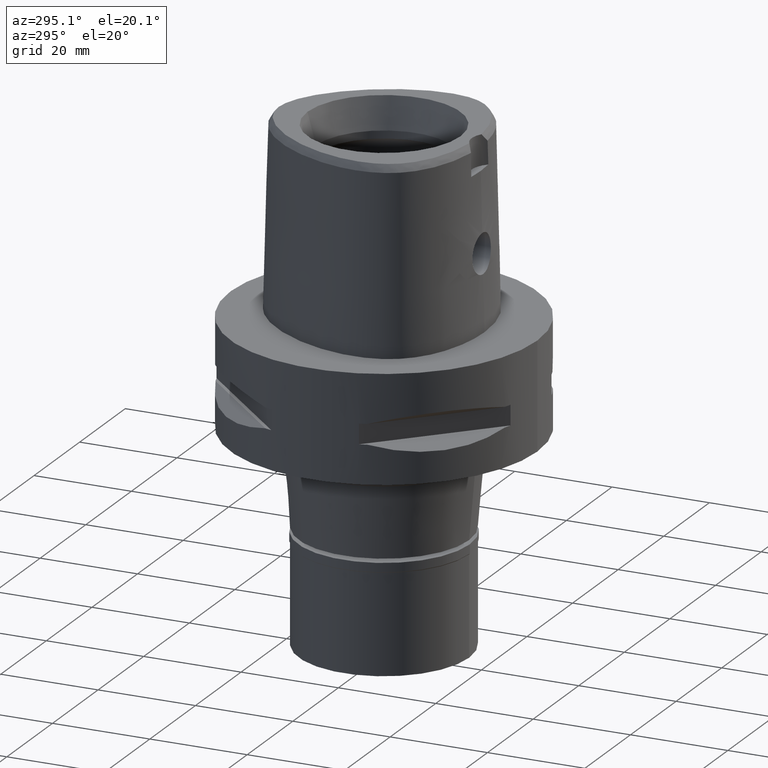
[diagram: clean part render]
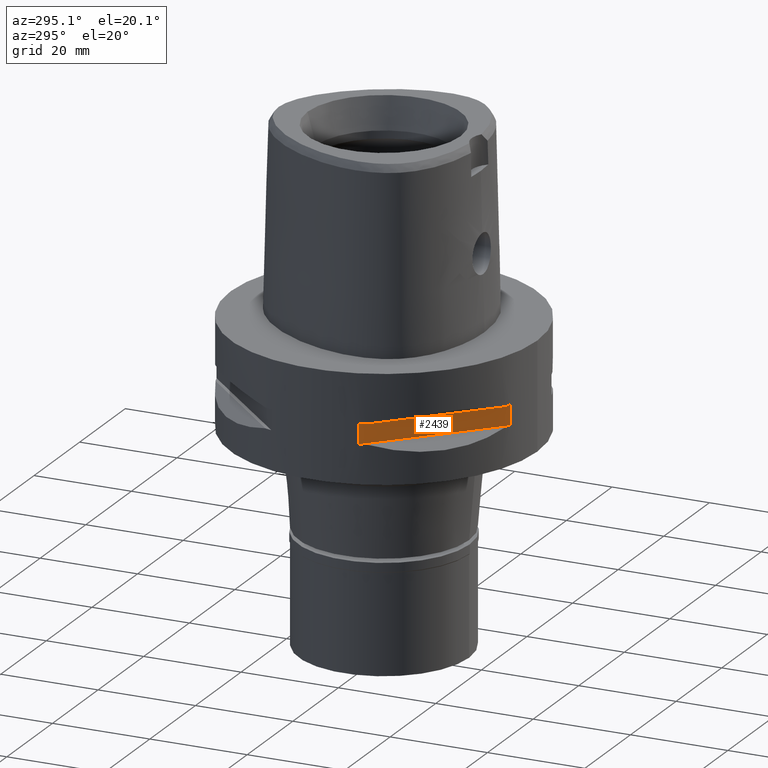
[diagram: same view with one face highlighted and labeled with its STEP entity id]
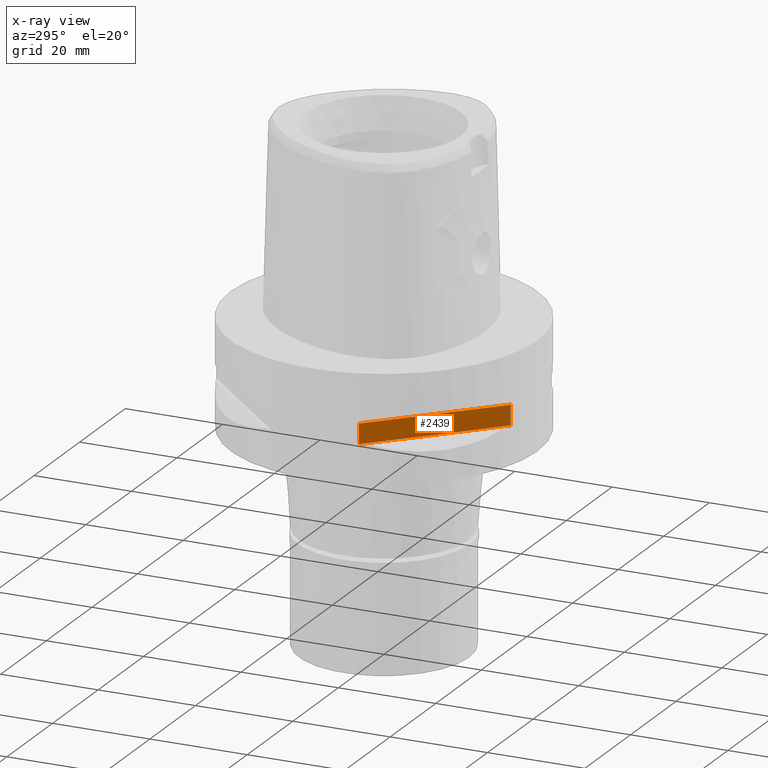
[diagram: x-ray of the same camera — body ghosted, the highlighted face saturated]
A machine part, auxiliary view. The second image highlights one B-rep face of the part: STEP entity #2439.
The next image is the same camera in x-ray: the body ghosted, the highlighted face saturated — about 0% of this face is hidden behind the body in this view.
In plain terms, the highlighted planar face has unit normal (0.7071, 0.7071, 0).
Its self-contained STEP definition (entity closure, byte-faithful):
#162 = AXIS2_PLACEMENT_3D ( 'NONE', #654, #4727, #2483 ) ;
#181 = CARTESIAN_POINT ( 'NONE',  ( -30.19251670572000279, -8.981198972019999616, -9.950000000000001066 ) ) ;
#193 = CARTESIAN_POINT ( 'NONE',  ( -8.981198972019999616, -30.19251670572000279, -14.05000000000000071 ) ) ;
#267 = PLANE ( 'NONE',  #162 ) ;
#404 = VECTOR ( 'NONE', #968, 1000.000000000000000 ) ;
#517 = ORIENTED_EDGE ( 'NONE', *, *, #4060, .F. ) ;
#654 = CARTESIAN_POINT ( 'NONE',  ( -5.444722215136000187, -33.72899346260000186, -9.950000000000001066 ) ) ;
#804 = DIRECTION ( 'NONE',  ( 0.7071067811865474617, -0.7071067811865474617, 0.0000000000000000000 ) ) ;
#968 = DIRECTION ( 'NONE',  ( 0.0000000000000000000, 0.0000000000000000000, 1.000000000000000000 ) ) ;
#1026 = FACE_OUTER_BOUND ( 'NONE', #2423, .T. ) ;
#1492 = CARTESIAN_POINT ( 'NONE',  ( -8.981198972017999438, -30.19251670572000279, -9.950000000000001066 ) ) ;
#1689 = VERTEX_POINT ( 'NONE', #193 ) ;
#1735 = VECTOR ( 'NONE', #804, 1000.000000000000114 ) ;
#1829 = CARTESIAN_POINT ( 'NONE',  ( -30.19251670572000279, -8.981198972017999438, -14.05000000000000071 ) ) ;
#2347 = ORIENTED_EDGE ( 'NONE', *, *, #4514, .T. ) ;
#2399 = DIRECTION ( 'NONE',  ( 0.7071067811865474617, -0.7071067811865474617, 0.0000000000000000000 ) ) ;
#2423 = EDGE_LOOP ( 'NONE', ( #517, #3862, #2347, #3893 ) ) ;
#2439 = ADVANCED_FACE ( 'NONE', ( #1026 ), #267, .F. ) ;
#2477 = VECTOR ( 'NONE', #3746, 1000.000000000000000 ) ;
#2483 = DIRECTION ( 'NONE',  ( 0.0000000000000000000, 0.0000000000000000000, -1.000000000000000000 ) ) ;
#2576 = CARTESIAN_POINT ( 'NONE',  ( -30.19251670572000279, -8.981198972017999438, -9.950000000000001066 ) ) ;
#2578 = LINE ( 'NONE', #3724, #1735 ) ;
#2758 = EDGE_CURVE ( 'NONE', #3401, #4627, #4053, .T. ) ;
#2789 = VECTOR ( 'NONE', #2399, 1000.000000000000114 ) ;
#2855 = EDGE_CURVE ( 'NONE', #1689, #4750, #3146, .T. ) ;
#3146 = LINE ( 'NONE', #4637, #404 ) ;
#3401 = VERTEX_POINT ( 'NONE', #181 ) ;
#3724 = CARTESIAN_POINT ( 'NONE',  ( -30.19251670572000279, -8.981198972017999438, -9.950000000000001066 ) ) ;
#3746 = DIRECTION ( 'NONE',  ( 0.0000000000000000000, 0.0000000000000000000, -1.000000000000000000 ) ) ;
#3862 = ORIENTED_EDGE ( 'NONE', *, *, #2758, .T. ) ;
#3893 = ORIENTED_EDGE ( 'NONE', *, *, #2855, .T. ) ;
#3940 = LINE ( 'NONE', #4692, #2789 ) ;
#4053 = LINE ( 'NONE', #2576, #2477 ) ;
#4060 = EDGE_CURVE ( 'NONE', #3401, #4750, #2578, .T. ) ;
#4514 = EDGE_CURVE ( 'NONE', #4627, #1689, #3940, .T. ) ;
#4627 = VERTEX_POINT ( 'NONE', #1829 ) ;
#4637 = CARTESIAN_POINT ( 'NONE',  ( -8.981198972017999438, -30.19251670572000279, -14.05000000000000071 ) ) ;
#4692 = CARTESIAN_POINT ( 'NONE',  ( -30.19251670572000279, -8.981198972017999438, -14.05000000000000071 ) ) ;
#4727 = DIRECTION ( 'NONE',  ( 0.7071067811865475727, 0.7071067811865475727, 0.0000000000000000000 ) ) ;
#4750 = VERTEX_POINT ( 'NONE', #1492 ) ;